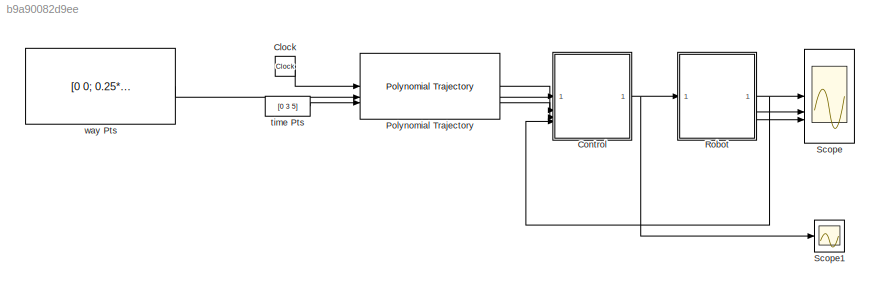
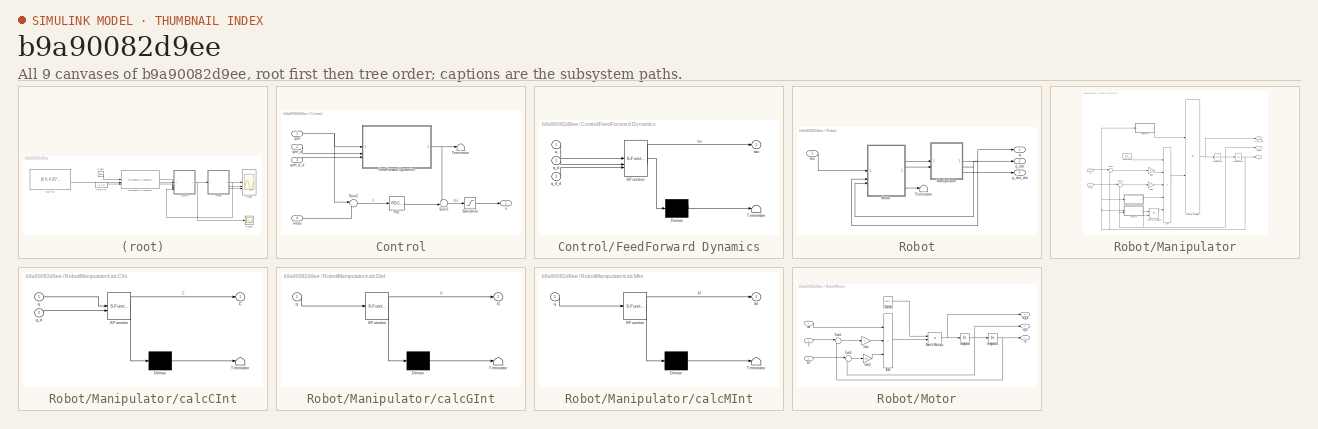
[diagram: thumbnail index - all 9 canvases of the model, root first then tree order]
MODEL slx_b9a90082d9ee
KIND model
CONFIG AbsTol = auto
CONFIG EnableMultiTasking = off
CONFIG FixedStep = auto
CONFIG InitFcn = init_const;
CONFIG MaxStep = auto
CONFIG MinStep = auto
CONFIG RelTol = 1e-3
CONFIG SampleTimeConstraint = Unconstrained
CONFIG SolverName = VariableStepAuto
CONFIG StartTime = 0.0
CONFIG StopTime = 12
BLOCK [Clock] Clock
BLOCK [SubSystem] Control
BLOCK [SubSystem] Control/FeedForward Dynamics
  ErrorFcn = Stateflow.Translate.translate
  PermitHierarchicalResolution = ExplicitOnly
  SFBlockType = MATLAB Function
  TreatAsAtomicUnit = on
BLOCK [Demux] Control/FeedForward Dynamics/ Demux 
  Outputs = 1
BLOCK [S-Function] Control/FeedForward Dynamics/ SFunction 
  EnableBusSupport = on
  FunctionName = sf_sfun
  Parameters = g,l1,l2,m1,m2
  PortCounts = [3 2]
  SFcnIsStateOwnerBlock = off
  SFunctionDeploymentMode = off
  Tag = Stateflow S-Function 13
BLOCK [Terminator] Control/FeedForward Dynamics/ Terminator 
BLOCK [Inport] Control/FeedForward Dynamics/q
BLOCK [Inport] Control/FeedForward Dynamics/q_d
  Port = 2
BLOCK [Inport] Control/FeedForward Dynamics/q_d_d
  Port = 3
BLOCK [Outport] Control/FeedForward Dynamics/tau
BLOCK [Reference] Control/PID  REF=slpidlib/PID Controller
  LibrarySourceBlock = simulink/Continuous/PID Controller
  SourceBlock = slpidlib/PID Controller
  SourceType = PID 1dof
BLOCK [Saturate] Control/Saturation
  LowerLimit = -12
  UpperLimit = 12
BLOCK [Sum] Control/Sum2
  Inputs = |+-
BLOCK [Sum] Control/Sum3
  Inputs = ++|
BLOCK [Terminator] Control/Terminator
BLOCK [Inport] Control/meas
  Port = 4
BLOCK [Inport] Control/qref
BLOCK [Inport] Control/qref_d
  Port = 2
BLOCK [Inport] Control/qref_d_d
  Port = 3
BLOCK [Outport] Control/u
BLOCK [Reference] Polynomial Trajectory  REF=robotcorelib/Polynomial Trajectory
  SourceBlock = robotcorelib/Polynomial Trajectory
  SourceType = robotics.slcore.internal.block.PolyTrajSys
BLOCK [SubSystem] Robot
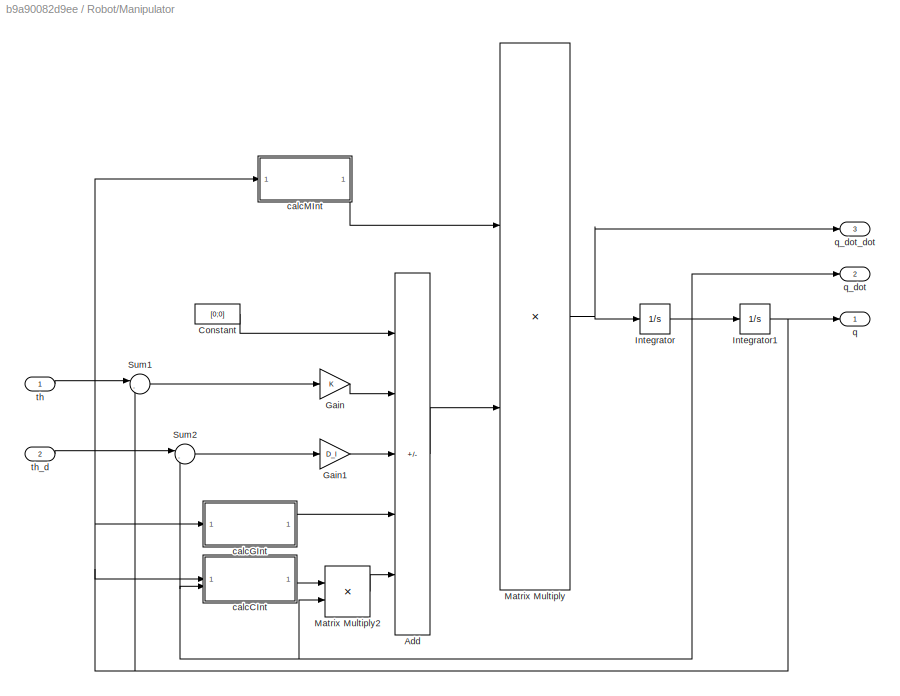
BLOCK [SubSystem] Robot/Manipulator
BLOCK [Sum] Robot/Manipulator/Add
  IconShape = rectangular
  Inputs = +----
BLOCK [Constant] Robot/Manipulator/Constant
  Value = [0;0]
BLOCK [Gain] Robot/Manipulator/Gain
  Gain = K
  Multiplication = Matrix(K*u)
BLOCK [Gain] Robot/Manipulator/Gain1
  Gain = D_l
  Multiplication = Matrix(K*u)
BLOCK [Integrator] Robot/Manipulator/Integrator
BLOCK [Integrator] Robot/Manipulator/Integrator1
BLOCK [Product] Robot/Manipulator/Matrix Multiply
  Multiplication = Matrix(*)
BLOCK [Product] Robot/Manipulator/Matrix Multiply2
  Multiplication = Matrix(*)
BLOCK [Sum] Robot/Manipulator/Sum1
  Inputs = |-+
BLOCK [Sum] Robot/Manipulator/Sum2
  Inputs = |-+
BLOCK [SubSystem] Robot/Manipulator/calcCInt
  ErrorFcn = Stateflow.Translate.translate
  PermitHierarchicalResolution = ExplicitOnly
  SFBlockType = MATLAB Function
  TreatAsAtomicUnit = on
BLOCK [Demux] Robot/Manipulator/calcCInt/ Demux 
  Outputs = 1
BLOCK [S-Function] Robot/Manipulator/calcCInt/ SFunction 
  EnableBusSupport = on
  FunctionName = sf_sfun
  Parameters = l1,l2,m1,m2
  PortCounts = [2 2]
  SFcnIsStateOwnerBlock = off
  SFunctionDeploymentMode = off
  Tag = Stateflow S-Function 1
BLOCK [Terminator] Robot/Manipulator/calcCInt/ Terminator 
BLOCK [Outport] Robot/Manipulator/calcCInt/C
BLOCK [Inport] Robot/Manipulator/calcCInt/q
BLOCK [Inport] Robot/Manipulator/calcCInt/q_d
  Port = 2
BLOCK [SubSystem] Robot/Manipulator/calcGInt
  ErrorFcn = Stateflow.Translate.translate
  PermitHierarchicalResolution = ExplicitOnly
  SFBlockType = MATLAB Function
  TreatAsAtomicUnit = on
BLOCK [Demux] Robot/Manipulator/calcGInt/ Demux 
  Outputs = 1
BLOCK [S-Function] Robot/Manipulator/calcGInt/ SFunction 
  EnableBusSupport = on
  FunctionName = sf_sfun
  Parameters = g,l1,l2,m1,m2
  PortCounts = [1 2]
  SFcnIsStateOwnerBlock = off
  SFunctionDeploymentMode = off
  Tag = Stateflow S-Function 3
BLOCK [Terminator] Robot/Manipulator/calcGInt/ Terminator 
BLOCK [Outport] Robot/Manipulator/calcGInt/G
BLOCK [Inport] Robot/Manipulator/calcGInt/q
BLOCK [SubSystem] Robot/Manipulator/calcMInt
  ErrorFcn = Stateflow.Translate.translate
  PermitHierarchicalResolution = ExplicitOnly
  SFBlockType = MATLAB Function
  TreatAsAtomicUnit = on
BLOCK [Demux] Robot/Manipulator/calcMInt/ Demux 
  Outputs = 1
BLOCK [S-Function] Robot/Manipulator/calcMInt/ SFunction 
  EnableBusSupport = on
  FunctionName = sf_sfun
  Parameters = l1,l2,m1,m2
  PortCounts = [1 2]
  SFcnIsStateOwnerBlock = off
  SFunctionDeploymentMode = off
  Tag = Stateflow S-Function 2
BLOCK [Terminator] Robot/Manipulator/calcMInt/ Terminator 
BLOCK [Outport] Robot/Manipulator/calcMInt/M
BLOCK [Inport] Robot/Manipulator/calcMInt/q
BLOCK [Outport] Robot/Manipulator/q
BLOCK [Outport] Robot/Manipulator/q_dot
  Port = 2
BLOCK [Outport] Robot/Manipulator/q_dot_dot
  Port = 3
BLOCK [Inport] Robot/Manipulator/th
BLOCK [Inport] Robot/Manipulator/th_d
  Port = 2
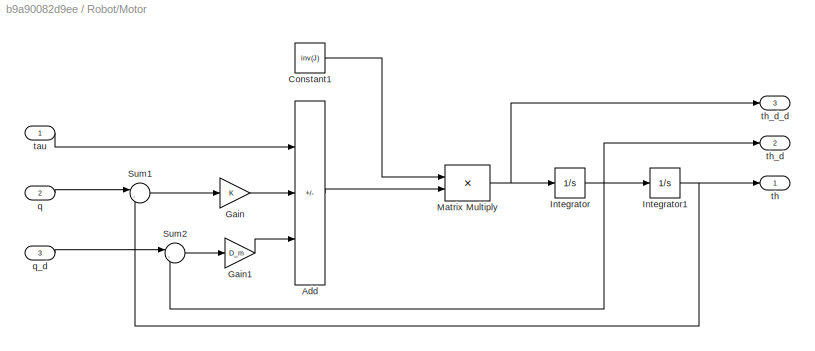
BLOCK [SubSystem] Robot/Motor
BLOCK [Sum] Robot/Motor/Add
  IconShape = rectangular
  Inputs = +--
BLOCK [Constant] Robot/Motor/Constant1
  Value = inv(J)
BLOCK [Gain] Robot/Motor/Gain
  Gain = K
  Multiplication = Matrix(K*u)
BLOCK [Gain] Robot/Motor/Gain1
  Gain = D_m
  Multiplication = Matrix(K*u)
BLOCK [Integrator] Robot/Motor/Integrator
BLOCK [Integrator] Robot/Motor/Integrator1
BLOCK [Product] Robot/Motor/Matrix Multiply
  Multiplication = Matrix(*)
BLOCK [Sum] Robot/Motor/Sum1
  Inputs = |-+
BLOCK [Sum] Robot/Motor/Sum2
  Inputs = |-+
BLOCK [Inport] Robot/Motor/q
  Port = 2
BLOCK [Inport] Robot/Motor/q_d
  Port = 3
BLOCK [Inport] Robot/Motor/tau
BLOCK [Outport] Robot/Motor/th
BLOCK [Outport] Robot/Motor/th_d
  Port = 2
BLOCK [Outport] Robot/Motor/th_d_d
  Port = 3
BLOCK [Terminator] Robot/Terminator
BLOCK [Outport] Robot/q
BLOCK [Outport] Robot/q_dot
  Port = 2
BLOCK [Outport] Robot/q_dot_dot
  Port = 3
BLOCK [Inport] Robot/tau
BLOCK [Scope] Scope
  Floating = off
  NumInputPorts = 3
  ScopeSpecificationString = Simulink.scopes.TimeScopeBlockCfg('CurrentConfiguration', extmgr.ConfigurationSet(extmgr.Configuration('Core','General UI',true),extmgr.Configuration('Core','Source UI',true),extmgr.Configuration('Sources','WiredSimulink',true,'DataLoggingVariableName','ScopeData1'),extmgr.Configuration('Visuals','Time Domain',true,'SerializedDisplays',{struct('MinYLimReal','-0.50662','MaxYLimReal','4.55956','YLab...<+3049ch>
BLOCK [Scope] Scope1
  Floating = off
  NumInputPorts = 1
  ScopeSpecificationString = Simulink.scopes.TimeScopeBlockCfg('CurrentConfiguration', extmgr.ConfigurationSet(extmgr.Configuration('Core','General UI',true),extmgr.Configuration('Core','Source UI',true),extmgr.Configuration('Sources','WiredSimulink',true,'DataLoggingVariableName','ScopeData1'),extmgr.Configuration('Visuals','Time Domain',true,'SerializedDisplays',{struct('MinYLimReal','-13.55088','MaxYLimReal','1.95789','YLa...<+1363ch>
BLOCK [Constant] time Pts
  Value = [0 3 5]
BLOCK [Constant] way Pts
  Value = [0 0; 0.25*pi/2 0.25*pi/2; 0.5*pi/2 0.5*pi/2]'
LINE Clock:1 -> Polynomial Trajectory:1
NET Control/FeedForward Dynamics:1 -> Control/Sum3:1, Control/Terminator:1
LINE Control/PID:1 -> Control/Sum3:2
LINE Control/Saturation:1 -> Control/u:1
LINE Control/Sum2:1 -> Control/PID:1
LINE Control/Sum3:1 -> Control/Saturation:1
LINE Control/meas:1 -> Control/Sum2:2
NET Control/qref:1 -> Control/FeedForward Dynamics:1, Control/Sum2:1
LINE Control/qref_d:1 -> Control/FeedForward Dynamics:2
LINE Control/qref_d_d:1 -> Control/FeedForward Dynamics:3
NET Control:1 -> Robot:1, Scope1:1
LINE Polynomial Trajectory:1 -> Control:1
LINE Polynomial Trajectory:2 -> Control:2
LINE Polynomial Trajectory:3 -> Control:3
LINE Robot/Manipulator/Add:1 -> Robot/Manipulator/Matrix Multiply:2
LINE Robot/Manipulator/Constant:1 -> Robot/Manipulator/Add:1
LINE Robot/Manipulator/Gain1:1 -> Robot/Manipulator/Add:3
LINE Robot/Manipulator/Gain:1 -> Robot/Manipulator/Add:2
NET Robot/Manipulator/Integrator1:1 -> Robot/Manipulator/Sum1:2, Robot/Manipulator/calcCInt:1, Robot/Manipulator/calcGInt:1, Robot/Manipulator/calcMInt:1, Robot/Manipulator/q:1
NET Robot/Manipulator/Integrator:1 -> Robot/Manipulator/Integrator1:1, Robot/Manipulator/Matrix Multiply2:2, Robot/Manipulator/Sum2:2, Robot/Manipulator/calcCInt:2, Robot/Manipulator/q_dot:1
LINE Robot/Manipulator/Matrix Multiply2:1 -> Robot/Manipulator/Add:5
NET Robot/Manipulator/Matrix Multiply:1 -> Robot/Manipulator/Integrator:1, Robot/Manipulator/q_dot_dot:1
LINE Robot/Manipulator/Sum1:1 -> Robot/Manipulator/Gain:1
LINE Robot/Manipulator/Sum2:1 -> Robot/Manipulator/Gain1:1
LINE Robot/Manipulator/calcCInt:1 -> Robot/Manipulator/Matrix Multiply2:1
LINE Robot/Manipulator/calcGInt:1 -> Robot/Manipulator/Add:4
LINE Robot/Manipulator/calcMInt:1 -> Robot/Manipulator/Matrix Multiply:1
LINE Robot/Manipulator/th:1 -> Robot/Manipulator/Sum1:1
LINE Robot/Manipulator/th_d:1 -> Robot/Manipulator/Sum2:1
NET Robot/Manipulator:1 -> Robot/Motor:2, Robot/q:1
NET Robot/Manipulator:2 -> Robot/Motor:3, Robot/q_dot:1
LINE Robot/Manipulator:3 -> Robot/q_dot_dot:1
LINE Robot/Motor/Add:1 -> Robot/Motor/Matrix Multiply:2
LINE Robot/Motor/Constant1:1 -> Robot/Motor/Matrix Multiply:1
LINE Robot/Motor/Gain1:1 -> Robot/Motor/Add:3
LINE Robot/Motor/Gain:1 -> Robot/Motor/Add:2
NET Robot/Motor/Integrator1:1 -> Robot/Motor/Sum1:2, Robot/Motor/th:1
NET Robot/Motor/Integrator:1 -> Robot/Motor/Integrator1:1, Robot/Motor/Sum2:2, Robot/Motor/th_d:1
NET Robot/Motor/Matrix Multiply:1 -> Robot/Motor/Integrator:1, Robot/Motor/th_d_d:1
LINE Robot/Motor/Sum1:1 -> Robot/Motor/Gain:1
LINE Robot/Motor/Sum2:1 -> Robot/Motor/Gain1:1
LINE Robot/Motor/q:1 -> Robot/Motor/Sum1:1
LINE Robot/Motor/q_d:1 -> Robot/Motor/Sum2:1
LINE Robot/Motor/tau:1 -> Robot/Motor/Add:1
LINE Robot/Motor:1 -> Robot/Manipulator:1
LINE Robot/Motor:2 -> Robot/Manipulator:2
LINE Robot/Motor:3 -> Robot/Terminator:1
LINE Robot/tau:1 -> Robot/Motor:1
NET Robot:1 -> Control:4, Scope:1
LINE Robot:2 -> Scope:2
LINE Robot:3 -> Scope:3
LINE time Pts:1 -> Polynomial Trajectory:3
LINE way Pts:1 -> Polynomial Trajectory:2
note: NET lines group one-source signal fan-out (src -> all destinations, sorted); 1:1 wires keep LINE
CHART Robot/Manipulator/calcCInt states=1 transitions=1
  STATE_LABEL 'eML_blk_kernel()'
  STATE_LABEL 'SCRIPT:\nfunction C = calcCInt(q, q_d, m1, m2, l1, l2)\nC=[-2*l1*l2*m2*sin(q(2))*q_d(2) -l1*l2*m2*sin(q(2))*q_d(2);\n      l1*l2*m2*sin(q(2))*q_d(1) 0];\nend'
CHART Robot/Manipulator/calcMInt states=1 transitions=1
  STATE_LABEL 'eML_blk_kernel()'
  STATE_LABEL 'SCRIPT:\nfunction M = calcMInt(q, m1, m2, l1, l2)\nM=[(m1+m2)*l1^2+m2*l2^2+2*m2*l1*l2*cos(q(2)) m2*l2^2+m2*l1*l2*cos(q(2));\n      m2*l2^2+m2*l1*l2*cos(q(2)) m2*l2^2];\nM=inv(M);\nend'
CHART Robot/Manipulator/calcGInt states=1 transitions=1
  STATE_LABEL 'eML_blk_kernel()'
  STATE_LABEL 'SCRIPT:\nfunction G = calcGInt(q, m1, m2, g, l1, l2)\nG = -[(m1+m2)*g*l1*sin(q(1))+m2*g*l2*sin(q(1)+q(2));\n         m2*g*l2*sin(q(1)+q(2))];\nend'
CHART Control/FeedForward Dynamics states=1 transitions=1
  STATE_LABEL 'eML_blk_kernel()'
  STATE_LABEL 'SCRIPT:\nfunction tau = ID(q, q_d, q_d_d, m1, m2, l1, l2, g)\n\nq1 = q(1);\nq2 = q(2);\n\nq1dot = q_d(1);\nq2dot = q_d(2);\n\nM11 = (m1+m2)*l1^2 + m2*l2^2 + 2*m2*l1*l2*cos(q2);\nM12 = m2*l2^2 + m2*l1*l2*cos(q2);\nM21 = m2*l2^2+m2*l1*l2*cos(q2);\nM22 = m2*l2^2;\n\nM = [M11 M12; ...\n     M21 M22];\n\nC11 = -m2*l1*l2*2*q2dot*sin(q2);\nC12 = -m2*l1*l2*q2dot*sin(q2); \n\nC21 = m2*l1*l2*q1dot*sin(q2);\nC22 = 0;\n\nC = [C11 C...<+195ch>'
CHART  states=0 transitions=0
CHART  states=0 transitions=0
CHART  states=0 transitions=0
CHART  states=0 transitions=0
